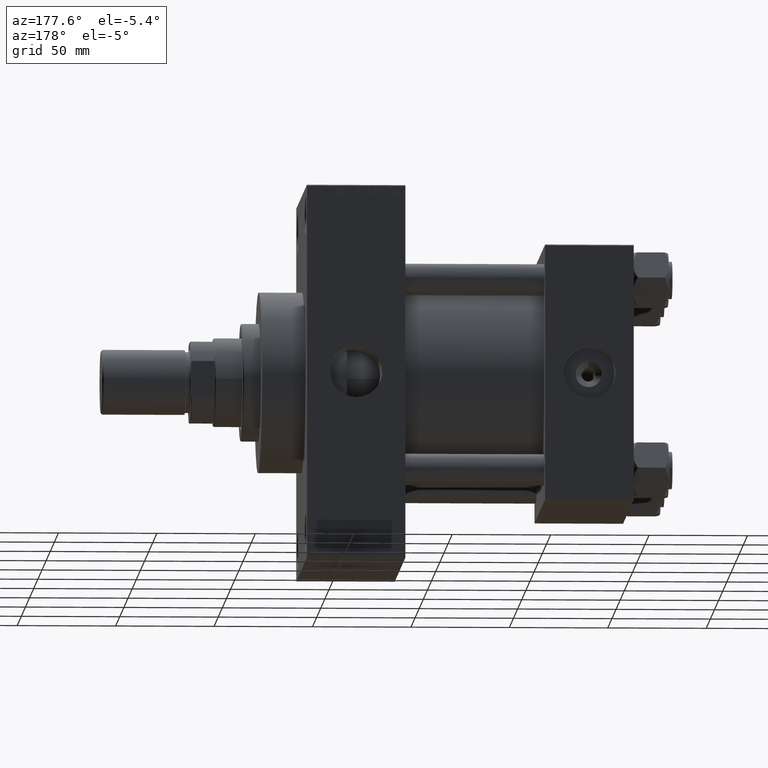
[diagram: clean part render]
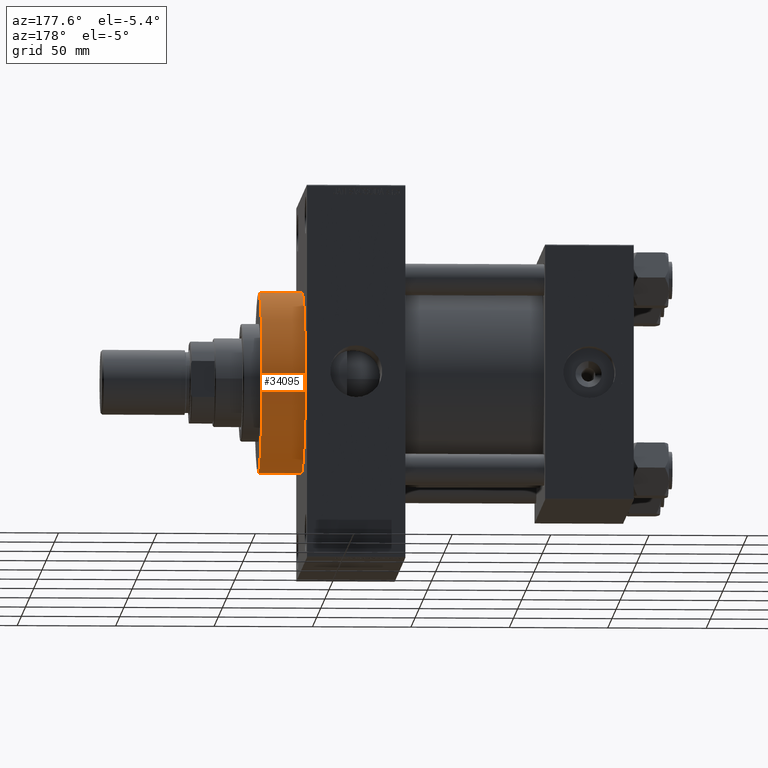
[diagram: same view with one face highlighted and labeled with its STEP entity id]
A machine part, auxiliary view. The second image highlights one B-rep face of the part: STEP entity #34095.
In plain terms, the highlighted cylindrical surface (partial cylindrical patch) has radius 46 mm, axis along (-1, -0, -0).
Its self-contained STEP definition (entity closure, byte-faithful):
#329 = AXIS2_PLACEMENT_3D ( 'NONE', #47806, #20354, #40447 ) ;
#507 = DIRECTION ( 'NONE',  ( 1.000000000000000000, 0.000000000000000000, 0.000000000000000000 ) ) ;
#723 = EDGE_CURVE ( 'NONE', #23924, #27175, #18556, .T. ) ;
#4616 = CIRCLE ( 'NONE', #43586, 46.00000000000000000 ) ;
#5353 = CYLINDRICAL_SURFACE ( 'NONE', #329, 46.00000000000000000 ) ;
#6225 = AXIS2_PLACEMENT_3D ( 'NONE', #32495, #507, #16231 ) ;
#8610 = CARTESIAN_POINT ( 'NONE',  ( 187.9999999999999716, 0.000000000000000000, 0.000000000000000000 ) ) ;
#9620 = LINE ( 'NONE', #31998, #37863 ) ;
#10620 = ORIENTED_EDGE ( 'NONE', *, *, #11641, .T. ) ;
#11641 = EDGE_CURVE ( 'NONE', #27175, #43194, #49244, .T. ) ;
#11693 = EDGE_CURVE ( 'NONE', #23924, #38570, #4616, .T. ) ;
#13431 = EDGE_CURVE ( 'NONE', #38570, #43194, #9620, .T. ) ;
#16231 = DIRECTION ( 'NONE',  ( 0.000000000000000000, 0.000000000000000000, -1.000000000000000000 ) ) ;
#18556 = LINE ( 'NONE', #22372, #39923 ) ;
#20045 = DIRECTION ( 'NONE',  ( -1.000000000000000000, -0.000000000000000000, -0.000000000000000000 ) ) ;
#20354 = DIRECTION ( 'NONE',  ( -1.000000000000000000, -0.000000000000000000, -0.000000000000000000 ) ) ;
#21923 = ORIENTED_EDGE ( 'NONE', *, *, #13431, .F. ) ;
#22372 = CARTESIAN_POINT ( 'NONE',  ( 187.9999999999999716, 5.633375276077824704E-15, -46.00000000000000000 ) ) ;
#23924 = VERTEX_POINT ( 'NONE', #39383 ) ;
#27175 = VERTEX_POINT ( 'NONE', #48225 ) ;
#29496 = DIRECTION ( 'NONE',  ( -1.000000000000000000, -0.000000000000000000, -0.000000000000000000 ) ) ;
#31576 = FACE_OUTER_BOUND ( 'NONE', #37882, .T. ) ;
#31998 = CARTESIAN_POINT ( 'NONE',  ( 187.9999999999999716, 0.000000000000000000, 46.00000000000000000 ) ) ;
#32495 = CARTESIAN_POINT ( 'NONE',  ( 165.9999999999999716, 0.000000000000000000, 0.000000000000000000 ) ) ;
#34095 = ADVANCED_FACE ( 'NONE', ( #31576 ), #5353, .T. ) ;
#37863 = VECTOR ( 'NONE', #20045, 1000.000000000000000 ) ;
#37882 = EDGE_LOOP ( 'NONE', ( #41710, #40923, #10620, #21923 ) ) ;
#38570 = VERTEX_POINT ( 'NONE', #44771 ) ;
#39383 = CARTESIAN_POINT ( 'NONE',  ( 187.9999999999999716, 5.633375276077824704E-15, -46.00000000000000000 ) ) ;
#39923 = VECTOR ( 'NONE', #29496, 1000.000000000000000 ) ;
#40447 = DIRECTION ( 'NONE',  ( 0.000000000000000000, 0.000000000000000000, 1.000000000000000000 ) ) ;
#40923 = ORIENTED_EDGE ( 'NONE', *, *, #723, .T. ) ;
#41710 = ORIENTED_EDGE ( 'NONE', *, *, #11693, .F. ) ;
#43194 = VERTEX_POINT ( 'NONE', #47640 ) ;
#43443 = DIRECTION ( 'NONE',  ( 0.000000000000000000, 0.000000000000000000, -1.000000000000000000 ) ) ;
#43586 = AXIS2_PLACEMENT_3D ( 'NONE', #8610, #43686, #43443 ) ;
#43686 = DIRECTION ( 'NONE',  ( 1.000000000000000000, 0.000000000000000000, 0.000000000000000000 ) ) ;
#44771 = CARTESIAN_POINT ( 'NONE',  ( 187.9999999999999716, 0.000000000000000000, 46.00000000000000000 ) ) ;
#47640 = CARTESIAN_POINT ( 'NONE',  ( 165.9999999999999716, 0.000000000000000000, 46.00000000000000000 ) ) ;
#47806 = CARTESIAN_POINT ( 'NONE',  ( 187.9999999999999716, 0.000000000000000000, 0.000000000000000000 ) ) ;
#48225 = CARTESIAN_POINT ( 'NONE',  ( 165.9999999999999716, 5.633375276077824704E-15, -46.00000000000000000 ) ) ;
#49244 = CIRCLE ( 'NONE', #6225, 46.00000000000000000 ) ;